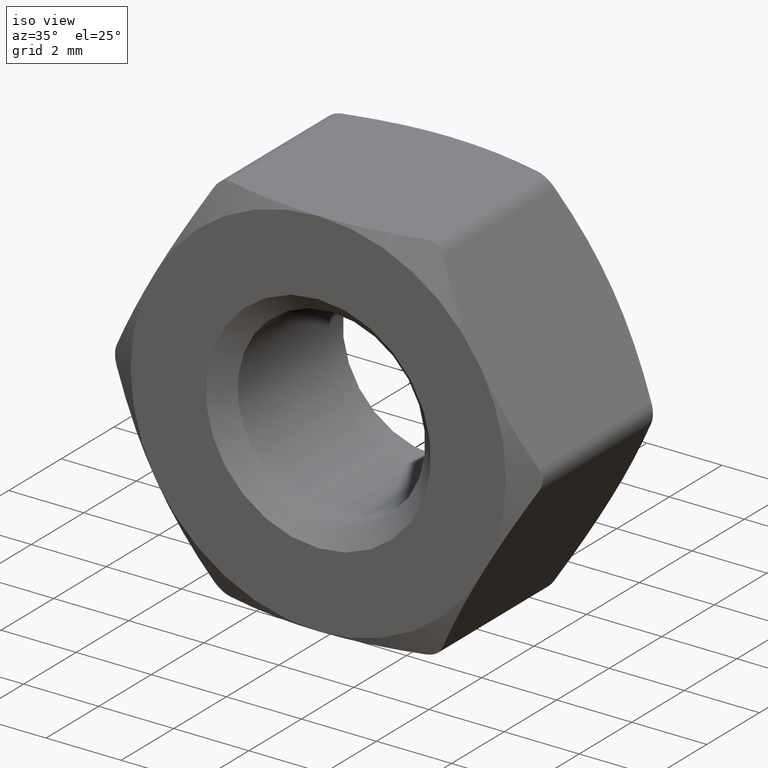
[diagram: clean part render]
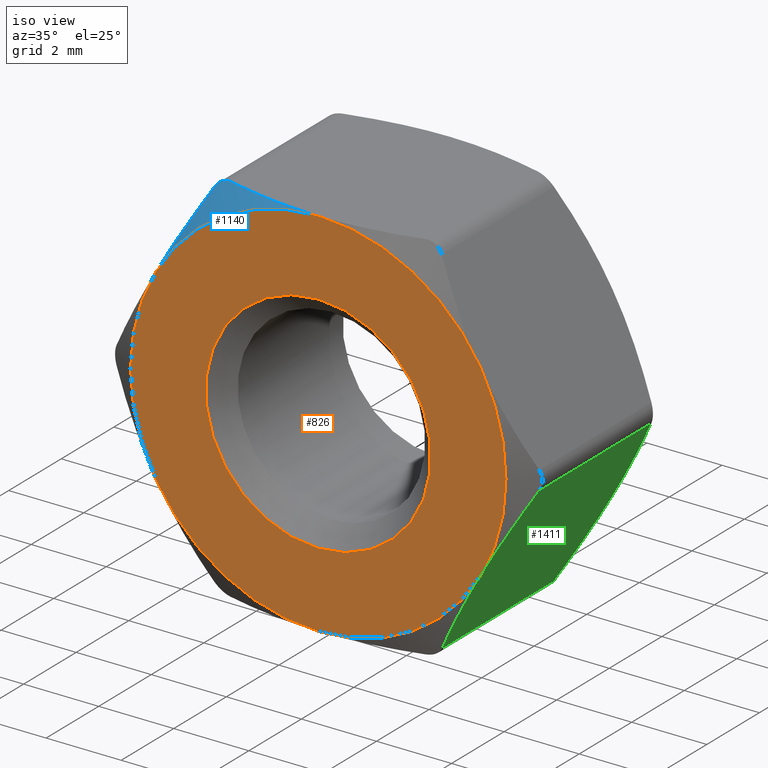
[diagram: same view with three faces highlighted in distinct colors, each labeled with its STEP entity id]
A machine part, iso view with three faces highlighted in distinct colors.
Their STEP definitions:

[orange] entity #826 — the highlighted planar face has unit normal (0, 1, 0).
#61 = AXIS2_PLACEMENT_3D ( 'NONE', #934, #791, #1212 ) ;
#93 = DIRECTION ( 'NONE',  ( -0.0000000000000000000, -1.000000000000000000, -0.0000000000000000000 ) ) ;
#108 = DIRECTION ( 'NONE',  ( 0.0000000000000000000, 1.000000000000000000, 0.0000000000000000000 ) ) ;
#133 = CIRCLE ( 'NONE', #967, 4.999999999999999100 ) ;
#135 = CIRCLE ( 'NONE', #1461, 4.999999999999999100 ) ;
#137 = EDGE_CURVE ( 'NONE', #1092, #1092, #1374, .T. ) ;
#173 = EDGE_CURVE ( 'NONE', #1547, #1031, #868, .T. ) ;
#176 = ORIENTED_EDGE ( 'NONE', *, *, #494, .T. ) ;
#201 = CIRCLE ( 'NONE', #264, 4.999999999999999100 ) ;
#205 = DIRECTION ( 'NONE',  ( 1.000000000000000000, -1.734723475976807300E-016, 0.0000000000000000000 ) ) ;
#214 = VERTEX_POINT ( 'NONE', #224 ) ;
#224 = CARTESIAN_POINT ( 'NONE',  ( -4.330127018922193600, -2.499999999999999100, -2.499999999999998200 ) ) ;
#235 = DIRECTION ( 'NONE',  ( -0.0000000000000000000, -1.000000000000000000, -0.0000000000000000000 ) ) ;
#254 = CARTESIAN_POINT ( 'NONE',  ( -3.386450907888040000E-016, -2.499999999999999600, -4.999999999999999100 ) ) ;
#257 = DIRECTION ( 'NONE',  ( 0.0000000000000000000, 0.0000000000000000000, 1.000000000000000000 ) ) ;
#264 = AXIS2_PLACEMENT_3D ( 'NONE', #1740, #93, #1442 ) ;
#274 = ORIENTED_EDGE ( 'NONE', *, *, #137, .T. ) ;
#361 = AXIS2_PLACEMENT_3D ( 'NONE', #876, #468, #205 ) ;
#364 = CARTESIAN_POINT ( 'NONE',  ( -3.386450907888040500E-016, -2.500000000000000000, 1.173101005959984800E-015 ) ) ;
#388 = AXIS2_PLACEMENT_3D ( 'NONE', #1599, #108, #912 ) ;
#459 = AXIS2_PLACEMENT_3D ( 'NONE', #1215, #1348, #535 ) ;
#468 = DIRECTION ( 'NONE',  ( -1.354580363155216500E-016, -1.000000000000000000, -0.0000000000000000000 ) ) ;
#476 = CARTESIAN_POINT ( 'NONE',  ( 0.0000000000000000000, -2.500000000000000000, 0.0000000000000000000 ) ) ;
#482 = EDGE_LOOP ( 'NONE', ( #274 ) ) ;
#494 = EDGE_CURVE ( 'NONE', #833, #1547, #867, .T. ) ;
#509 = CARTESIAN_POINT ( 'NONE',  ( -4.330127018922192800, -2.499999999999999100, 2.500000000000000000 ) ) ;
#535 = DIRECTION ( 'NONE',  ( 0.0000000000000000000, 0.0000000000000000000, 1.000000000000000000 ) ) ;
#549 = EDGE_CURVE ( 'NONE', #964, #214, #133, .T. ) ;
#608 = EDGE_CURVE ( 'NONE', #1028, #833, #201, .T. ) ;
#657 = CARTESIAN_POINT ( 'NONE',  ( 4.330127018922192800, -2.500000000000000000, -2.500000000000000000 ) ) ;
#665 = CARTESIAN_POINT ( 'NONE',  ( -3.386450907888040500E-016, -2.500000000000000000, 1.173101005959984800E-015 ) ) ;
#671 = DIRECTION ( 'NONE',  ( -0.0000000000000000000, -1.000000000000000000, -0.0000000000000000000 ) ) ;
#774 = ORIENTED_EDGE ( 'NONE', *, *, #549, .T. ) ;
#778 = CIRCLE ( 'NONE', #459, 4.999999999999999100 ) ;
#791 = DIRECTION ( 'NONE',  ( -0.0000000000000000000, -1.000000000000000000, -0.0000000000000000000 ) ) ;
#826 = ADVANCED_FACE ( 'NONE', ( #952, #1651 ), #1034, .F. ) ;
#833 = VERTEX_POINT ( 'NONE', #657 ) ;
#842 = ORIENTED_EDGE ( 'NONE', *, *, #608, .T. ) ;
#867 = CIRCLE ( 'NONE', #61, 4.999999999999999100 ) ;
#868 = CIRCLE ( 'NONE', #361, 4.999999999999999100 ) ;
#876 = CARTESIAN_POINT ( 'NONE',  ( -3.386450907888040500E-016, -2.499999999999999600, 0.0000000000000000000 ) ) ;
#906 = ORIENTED_EDGE ( 'NONE', *, *, #958, .T. ) ;
#912 = DIRECTION ( 'NONE',  ( 0.0000000000000000000, -0.0000000000000000000, 1.000000000000000000 ) ) ;
#934 = CARTESIAN_POINT ( 'NONE',  ( -3.386450907888040500E-016, -2.500000000000000000, 1.173101005959984800E-015 ) ) ;
#941 = CARTESIAN_POINT ( 'NONE',  ( -3.386450907888040000E-016, -2.499999999999999600, 4.999999999999999100 ) ) ;
#952 = FACE_BOUND ( 'NONE', #482, .T. ) ;
#958 = EDGE_CURVE ( 'NONE', #214, #1028, #135, .T. ) ;
#964 = VERTEX_POINT ( 'NONE', #509 ) ;
#967 = AXIS2_PLACEMENT_3D ( 'NONE', #665, #671, #257 ) ;
#1028 = VERTEX_POINT ( 'NONE', #254 ) ;
#1031 = VERTEX_POINT ( 'NONE', #941 ) ;
#1034 = PLANE ( 'NONE',  #388 ) ;
#1039 = EDGE_CURVE ( 'NONE', #1031, #964, #778, .T. ) ;
#1092 = VERTEX_POINT ( 'NONE', #1584 ) ;
#1116 = AXIS2_PLACEMENT_3D ( 'NONE', #476, #1157, #1162 ) ;
#1157 = DIRECTION ( 'NONE',  ( 0.0000000000000000000, 1.000000000000000000, 0.0000000000000000000 ) ) ;
#1159 = ORIENTED_EDGE ( 'NONE', *, *, #1039, .T. ) ;
#1162 = DIRECTION ( 'NONE',  ( 0.0000000000000000000, 0.0000000000000000000, 1.000000000000000000 ) ) ;
#1212 = DIRECTION ( 'NONE',  ( 1.776356839400250500E-015, 0.0000000000000000000, 1.000000000000000000 ) ) ;
#1215 = CARTESIAN_POINT ( 'NONE',  ( -3.386450907888040500E-016, -2.500000000000000000, 1.173101005959984800E-015 ) ) ;
#1243 = EDGE_LOOP ( 'NONE', ( #1623, #1159, #774, #906, #842, #176 ) ) ;
#1348 = DIRECTION ( 'NONE',  ( -0.0000000000000000000, -1.000000000000000000, -0.0000000000000000000 ) ) ;
#1374 = CIRCLE ( 'NONE', #1116, 2.999999999999995600 ) ;
#1378 = CARTESIAN_POINT ( 'NONE',  ( 4.330127018922192800, -2.500000000000000000, 2.500000000000000400 ) ) ;
#1442 = DIRECTION ( 'NONE',  ( 0.0000000000000000000, 0.0000000000000000000, 1.000000000000000000 ) ) ;
#1461 = AXIS2_PLACEMENT_3D ( 'NONE', #364, #235, #1465 ) ;
#1465 = DIRECTION ( 'NONE',  ( 1.776356839400250500E-015, 0.0000000000000000000, 1.000000000000000000 ) ) ;
#1547 = VERTEX_POINT ( 'NONE', #1378 ) ;
#1584 = CARTESIAN_POINT ( 'NONE',  ( 0.0000000000000000000, -2.500000000000000000, 2.999999999999995600 ) ) ;
#1599 = CARTESIAN_POINT ( 'NONE',  ( 0.0000000000000000000, -2.500000000000000000, 0.0000000000000000000 ) ) ;
#1623 = ORIENTED_EDGE ( 'NONE', *, *, #173, .T. ) ;
#1651 = FACE_OUTER_BOUND ( 'NONE', #1243, .T. ) ;
#1740 = CARTESIAN_POINT ( 'NONE',  ( -3.386450907888040500E-016, -2.500000000000000000, 1.173101005959984800E-015 ) ) ;

[blue] entity #1140 — the highlighted conical surface has half-angle 60 deg.
#52 = B_SPLINE_CURVE_WITH_KNOTS ( 'NONE', 3,
 ( #1743, #1489, #1622, #937, #1211, #533 ),
 .UNSPECIFIED., .F., .F.,
 ( 4, 2, 4 ),
 ( 0.005448447349268917100, 0.006759577961289052800, 0.008070708573309187700 ),
 .UNSPECIFIED. ) ;
#180 = CARTESIAN_POINT ( 'NONE',  ( -2.923932722703592300, -2.098035946016635100, 4.889305204382694100 ) ) ;
#194 = ORIENTED_EDGE ( 'NONE', *, *, #684, .F. ) ;
#197 = CARTESIAN_POINT ( 'NONE',  ( -2.598076211354499100, -2.133547796623962900, 4.999999999999999100 ) ) ;
#245 = CARTESIAN_POINT ( 'NONE',  ( -4.110116077647938400, -2.500000000000002700, 2.881070128508059500 ) ) ;
#380 = CARTESIAN_POINT ( 'NONE',  ( -3.031088913245535200, -2.133547796624277300, 4.750000000000000000 ) ) ;
#421 = CONICAL_SURFACE ( 'NONE', #1003, 4.999999999999999100, 1.047197551196604100 ) ;
#424 = B_SPLINE_CURVE_WITH_KNOTS ( 'NONE', 3,
 ( #1198, #245, #1600, #786, #767, #1720 ),
 .UNSPECIFIED., .F., .F.,
 ( 4, 2, 4 ),
 ( 0.002921158011986713800, 0.004227809343379591200, 0.005534460674772470300 ),
 .UNSPECIFIED. ) ;
#459 = AXIS2_PLACEMENT_3D ( 'NONE', #1215, #1348, #535 ) ;
#509 = CARTESIAN_POINT ( 'NONE',  ( -4.330127018922192800, -2.499999999999999100, 2.500000000000000000 ) ) ;
#533 = CARTESIAN_POINT ( 'NONE',  ( -3.386450907888040000E-016, -2.499999999999999600, 4.999999999999999100 ) ) ;
#535 = DIRECTION ( 'NONE',  ( 0.0000000000000000000, 0.0000000000000000000, 1.000000000000000000 ) ) ;
#595 = EDGE_CURVE ( 'NONE', #800, #1031, #52, .T. ) ;
#600 = CARTESIAN_POINT ( 'NONE',  ( -2.771465113498740300, -2.098116676514240700, 4.977155422018474200 ) ) ;
#684 = EDGE_CURVE ( 'NONE', #964, #982, #424, .T. ) ;
#724 = CARTESIAN_POINT ( 'NONE',  ( -3.031088913245535200, -2.133547796624277300, 4.750000000000000000 ) ) ;
#733 = CARTESIAN_POINT ( 'NONE',  ( -2.988064056856384100, -2.110640764794113000, 4.824521237254366200 ) ) ;
#752 = EDGE_LOOP ( 'NONE', ( #859, #990, #194, #1077 ) ) ;
#767 = CARTESIAN_POINT ( 'NONE',  ( -3.243356406411418200, -2.246561961703187600, 4.382341917041416400 ) ) ;
#778 = CIRCLE ( 'NONE', #459, 4.999999999999999100 ) ;
#786 = CARTESIAN_POINT ( 'NONE',  ( -3.457352440449193800, -2.338705476013393600, 4.011689913469742100 ) ) ;
#800 = VERTEX_POINT ( 'NONE', #197 ) ;
#859 = ORIENTED_EDGE ( 'NONE', *, *, #595, .F. ) ;
#861 = CARTESIAN_POINT ( 'NONE',  ( -2.598076211354499100, -2.133547796623962900, 4.999999999999999100 ) ) ;
#873 = B_SPLINE_CURVE_WITH_KNOTS ( 'NONE', 3,
 ( #861, #1407, #600, #180, #733, #724 ),
 .UNSPECIFIED., .F., .F.,
 ( 4, 2, 4 ),
 ( 1.147774416425301000E-015, 0.0002635016616923247600, 0.0005270033233835016800 ),
 .UNSPECIFIED. ) ;
#937 = CARTESIAN_POINT ( 'NONE',  ( -0.8734965585028889900, -2.466289581042887300, 4.999999999999997300 ) ) ;
#941 = CARTESIAN_POINT ( 'NONE',  ( -3.386450907888040000E-016, -2.499999999999999600, 4.999999999999999100 ) ) ;
#964 = VERTEX_POINT ( 'NONE', #509 ) ;
#982 = VERTEX_POINT ( 'NONE', #380 ) ;
#990 = ORIENTED_EDGE ( 'NONE', *, *, #1088, .T. ) ;
#1003 = AXIS2_PLACEMENT_3D ( 'NONE', #1537, #1631, #1128 ) ;
#1031 = VERTEX_POINT ( 'NONE', #941 ) ;
#1039 = EDGE_CURVE ( 'NONE', #1031, #964, #778, .T. ) ;
#1077 = ORIENTED_EDGE ( 'NONE', *, *, #1039, .F. ) ;
#1088 = EDGE_CURVE ( 'NONE', #800, #982, #873, .T. ) ;
#1128 = DIRECTION ( 'NONE',  ( 1.000000000000000000, -1.734723475976807300E-016, 0.0000000000000000000 ) ) ;
#1140 = ADVANCED_FACE ( 'NONE', ( #1251 ), #421, .T. ) ;
#1198 = CARTESIAN_POINT ( 'NONE',  ( -4.330127018922192800, -2.499999999999999100, 2.500000000000000000 ) ) ;
#1211 = CARTESIAN_POINT ( 'NONE',  ( -0.4380187123957476900, -2.499999999999999600, 4.999999999999999100 ) ) ;
#1215 = CARTESIAN_POINT ( 'NONE',  ( -3.386450907888040500E-016, -2.500000000000000000, 1.173101005959984800E-015 ) ) ;
#1251 = FACE_OUTER_BOUND ( 'NONE', #752, .T. ) ;
#1348 = DIRECTION ( 'NONE',  ( -0.0000000000000000000, -1.000000000000000000, -0.0000000000000000000 ) ) ;
#1407 = CARTESIAN_POINT ( 'NONE',  ( -2.684097962339448500, -2.110648208417288200, 4.999999999999997300 ) ) ;
#1489 = CARTESIAN_POINT ( 'NONE',  ( -2.173161805208122300, -2.246662965895615600, 4.999999999999999100 ) ) ;
#1537 = CARTESIAN_POINT ( 'NONE',  ( -3.386450907888040500E-016, -2.499999999999999600, 0.0000000000000000000 ) ) ;
#1600 = CARTESIAN_POINT ( 'NONE',  ( -3.890097551276379100, -2.465603583740588100, 3.262153394790034500 ) ) ;
#1622 = CARTESIAN_POINT ( 'NONE',  ( -1.739999404489925800, -2.339791525037610200, 4.999999999999999100 ) ) ;
#1631 = DIRECTION ( 'NONE',  ( 1.354580363155216500E-016, 1.000000000000000000, 0.0000000000000000000 ) ) ;
#1720 = CARTESIAN_POINT ( 'NONE',  ( -3.031088913245535200, -2.133547796624277300, 4.750000000000000000 ) ) ;
#1743 = CARTESIAN_POINT ( 'NONE',  ( -2.598076211354499100, -2.133547796623962900, 4.999999999999999100 ) ) ;

[green] entity #1411 — the highlighted planar face has unit normal (-0.866, 0, 0.5).
#32 = CARTESIAN_POINT ( 'NONE',  ( 5.629165124600557800, -2.133547796623369600, -0.2499999999970449500 ) ) ;
#48 = ORIENTED_EDGE ( 'NONE', *, *, #1169, .T. ) ;
#56 = EDGE_CURVE ( 'NONE', #430, #218, #326, .T. ) ;
#92 = ORIENTED_EDGE ( 'NONE', *, *, #516, .T. ) ;
#112 = CARTESIAN_POINT ( 'NONE',  ( 3.031088913245532500, -2.133547796624277700, -4.750000000000001800 ) ) ;
#168 = ORIENTED_EDGE ( 'NONE', *, *, #828, .T. ) ;
#218 = VERTEX_POINT ( 'NONE', #780 ) ;
#237 = B_SPLINE_CURVE_WITH_KNOTS ( 'NONE', 3,
 ( #1618, #253, #938, #258, #1608, #112 ),
 .UNSPECIFIED., .F., .F.,
 ( 4, 2, 4 ),
 ( 0.002921158011986718100, 0.004227809343379597200, 0.005534460674772476300 ),
 .UNSPECIFIED. ) ;
#253 = CARTESIAN_POINT ( 'NONE',  ( 4.110116077647938400, -2.500000000000003600, -2.881070128508060000 ) ) ;
#258 = CARTESIAN_POINT ( 'NONE',  ( 3.457352440449192400, -2.338705476013395000, -4.011689913469744800 ) ) ;
#259 = DIRECTION ( 'NONE',  ( 0.5000000000000003300, 0.0000000000000000000, 0.8660254037844383700 ) ) ;
#280 = VERTEX_POINT ( 'NONE', #385 ) ;
#290 = VECTOR ( 'NONE', #1189, 1000.000000000000000 ) ;
#306 = ORIENTED_EDGE ( 'NONE', *, *, #864, .T. ) ;
#316 = CARTESIAN_POINT ( 'NONE',  ( 5.203651303690525900, -2.360097271922225300, -0.9870115571359835400 ) ) ;
#326 = B_SPLINE_CURVE_WITH_KNOTS ( 'NONE', 3,
 ( #1696, #486, #748, #612, #1700, #889 ),
 .UNSPECIFIED., .F., .F.,
 ( 4, 2, 4 ),
 ( 0.002921158011986716000, 0.004227809343379597200, 0.005534460674772478100 ),
 .UNSPECIFIED. ) ;
#385 = CARTESIAN_POINT ( 'NONE',  ( 5.629165124600557800, -2.133547796623369600, -0.2499999999970449500 ) ) ;
#422 = DIRECTION ( 'NONE',  ( -0.8660254037844384900, 0.0000000000000000000, 0.5000000000000004400 ) ) ;
#430 = VERTEX_POINT ( 'NONE', #661 ) ;
#486 = CARTESIAN_POINT ( 'NONE',  ( 4.550137960196447100, 2.500000000000003600, -2.118929871491940500 ) ) ;
#516 = EDGE_CURVE ( 'NONE', #833, #814, #237, .T. ) ;
#550 = CARTESIAN_POINT ( 'NONE',  ( 5.773502691896260900, 2.500000000000000000, 3.903050469030138200E-015 ) ) ;
#612 = CARTESIAN_POINT ( 'NONE',  ( 5.202901597395192600, 2.338705476013394100, -0.9883100865302531000 ) ) ;
#657 = CARTESIAN_POINT ( 'NONE',  ( 4.330127018922192800, -2.500000000000000000, -2.500000000000000000 ) ) ;
#661 = CARTESIAN_POINT ( 'NONE',  ( 4.330127018922192800, 2.500000000000000000, -2.500000000000000000 ) ) ;
#727 = EDGE_CURVE ( 'NONE', #814, #1350, #824, .T. ) ;
#748 = CARTESIAN_POINT ( 'NONE',  ( 4.770156486568008200, 2.465603583740589000, -1.737846605209963700 ) ) ;
#780 = CARTESIAN_POINT ( 'NONE',  ( 5.629165124598854300, 2.133547796624276800, -0.2499999999999959500 ) ) ;
#784 = CARTESIAN_POINT ( 'NONE',  ( 3.031088913243828100, 2.133547796623370500, -4.750000000002954100 ) ) ;
#814 = VERTEX_POINT ( 'NONE', #1447 ) ;
#824 = LINE ( 'NONE', #1596, #290 ) ;
#828 = EDGE_CURVE ( 'NONE', #1350, #430, #1193, .T. ) ;
#833 = VERTEX_POINT ( 'NONE', #657 ) ;
#849 = CARTESIAN_POINT ( 'NONE',  ( 3.031088913243828100, 2.133547796623370500, -4.750000000002954100 ) ) ;
#864 = EDGE_CURVE ( 'NONE', #218, #280, #1694, .T. ) ;
#889 = CARTESIAN_POINT ( 'NONE',  ( 5.629165124598854300, 2.133547796624276800, -0.2499999999999959500 ) ) ;
#938 = CARTESIAN_POINT ( 'NONE',  ( 3.890097551276379100, -2.465603583740590300, -3.262153394790035400 ) ) ;
#1069 = ORIENTED_EDGE ( 'NONE', *, *, #727, .T. ) ;
#1169 = EDGE_CURVE ( 'NONE', #280, #833, #1688, .T. ) ;
#1174 = ORIENTED_EDGE ( 'NONE', *, *, #56, .T. ) ;
#1189 = DIRECTION ( 'NONE',  ( -0.0000000000000000000, 1.000000000000000000, -0.0000000000000000000 ) ) ;
#1193 = B_SPLINE_CURVE_WITH_KNOTS ( 'NONE', 3,
 ( #784, #1732, #1334, #1603 ),
 .UNSPECIFIED., .F., .F.,
 ( 4, 4 ),
 ( 0.0002973740778378684600, 0.002921158011986716000 ),
 .UNSPECIFIED. ) ;
#1202 = DIRECTION ( 'NONE',  ( 0.0000000000000000000, -1.000000000000000000, 0.0000000000000000000 ) ) ;
#1264 = CARTESIAN_POINT ( 'NONE',  ( 4.330127018922192800, -2.500000000000000000, -2.500000000000000000 ) ) ;
#1334 = CARTESIAN_POINT ( 'NONE',  ( 3.888340324045452200, 2.500000000000003100, -3.265197001634443400 ) ) ;
#1350 = VERTEX_POINT ( 'NONE', #849 ) ;
#1411 = ADVANCED_FACE ( 'NONE', ( #1567 ), #1644, .F. ) ;
#1447 = CARTESIAN_POINT ( 'NONE',  ( 3.031088913245532500, -2.133547796624277700, -4.750000000000001800 ) ) ;
#1490 = AXIS2_PLACEMENT_3D ( 'NONE', #550, #422, #259 ) ;
#1498 = CARTESIAN_POINT ( 'NONE',  ( 4.771913713798933400, -2.500000000000003600, -1.734802998365556400 ) ) ;
#1567 = FACE_OUTER_BOUND ( 'NONE', #1712, .T. ) ;
#1588 = VECTOR ( 'NONE', #1202, 1000.000000000000000 ) ;
#1596 = CARTESIAN_POINT ( 'NONE',  ( 3.031088913245532500, 2.500000000000000000, -4.750000000000002700 ) ) ;
#1603 = CARTESIAN_POINT ( 'NONE',  ( 4.330127018922192800, 2.500000000000000000, -2.500000000000000000 ) ) ;
#1608 = CARTESIAN_POINT ( 'NONE',  ( 3.243356406411414600, -2.246561961703188000, -4.382341917041414600 ) ) ;
#1618 = CARTESIAN_POINT ( 'NONE',  ( 4.330127018922192800, -2.500000000000000000, -2.500000000000000000 ) ) ;
#1644 = PLANE ( 'NONE',  #1490 ) ;
#1688 = B_SPLINE_CURVE_WITH_KNOTS ( 'NONE', 3,
 ( #32, #316, #1498, #1264 ),
 .UNSPECIFIED., .F., .F.,
 ( 4, 4 ),
 ( 0.0002973740778378693300, 0.002921158011986718100 ),
 .UNSPECIFIED. ) ;
#1694 = LINE ( 'NONE', #1725, #1588 ) ;
#1696 = CARTESIAN_POINT ( 'NONE',  ( 4.330127018922192800, 2.500000000000000000, -2.500000000000000000 ) ) ;
#1700 = CARTESIAN_POINT ( 'NONE',  ( 5.416897631432973100, 2.246561961703187100, -0.6176580829585822700 ) ) ;
#1712 = EDGE_LOOP ( 'NONE', ( #1174, #306, #48, #92, #1069, #168 ) ) ;
#1725 = CARTESIAN_POINT ( 'NONE',  ( 5.629165124598854300, 2.500000000000000000, -0.2499999999999960600 ) ) ;
#1732 = CARTESIAN_POINT ( 'NONE',  ( 3.456602734153859200, 2.360097271922225700, -4.012988442864015700 ) ) ;